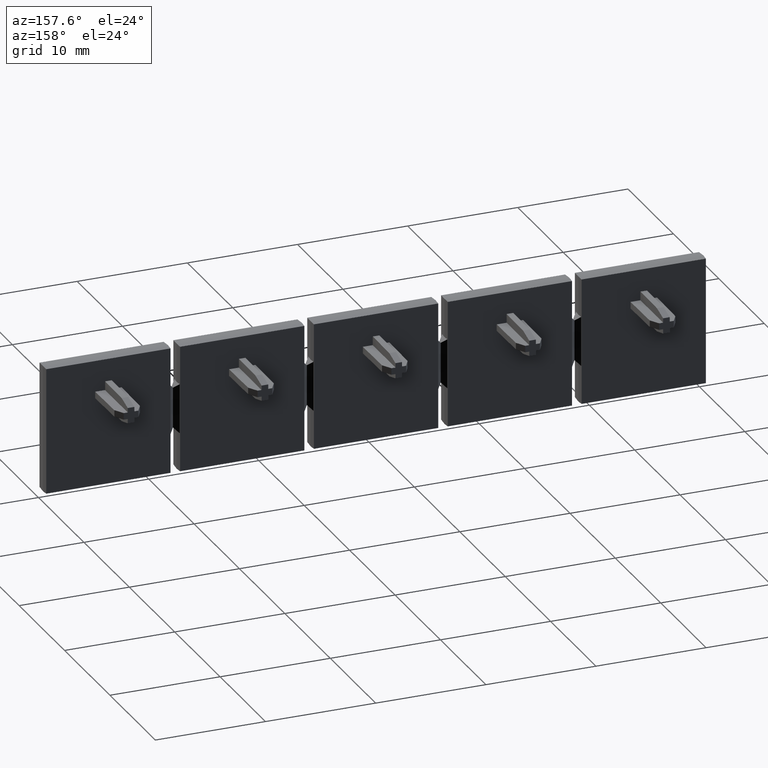
[diagram: clean part render]
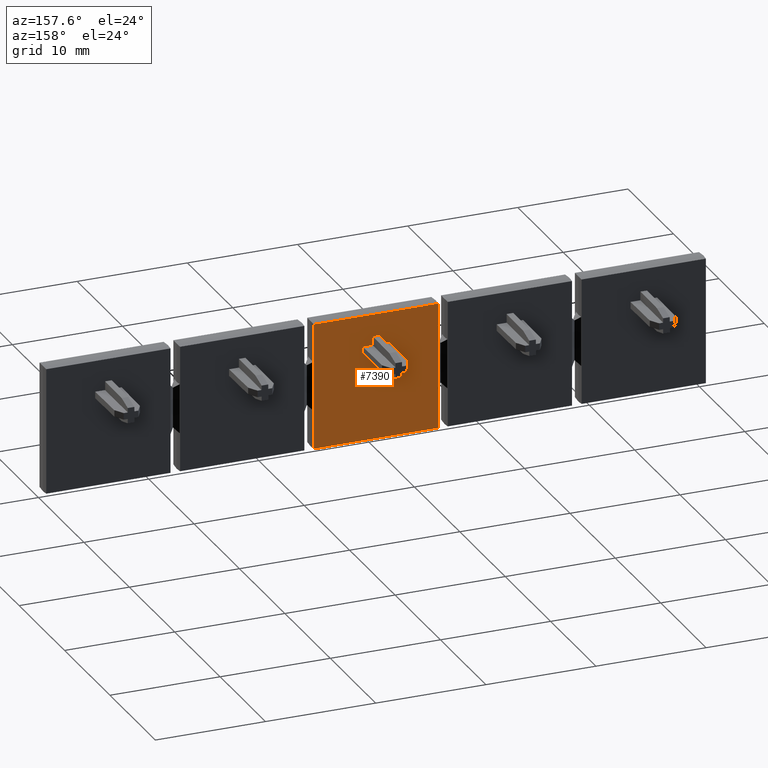
[diagram: same view with one face highlighted and labeled with its STEP entity id]
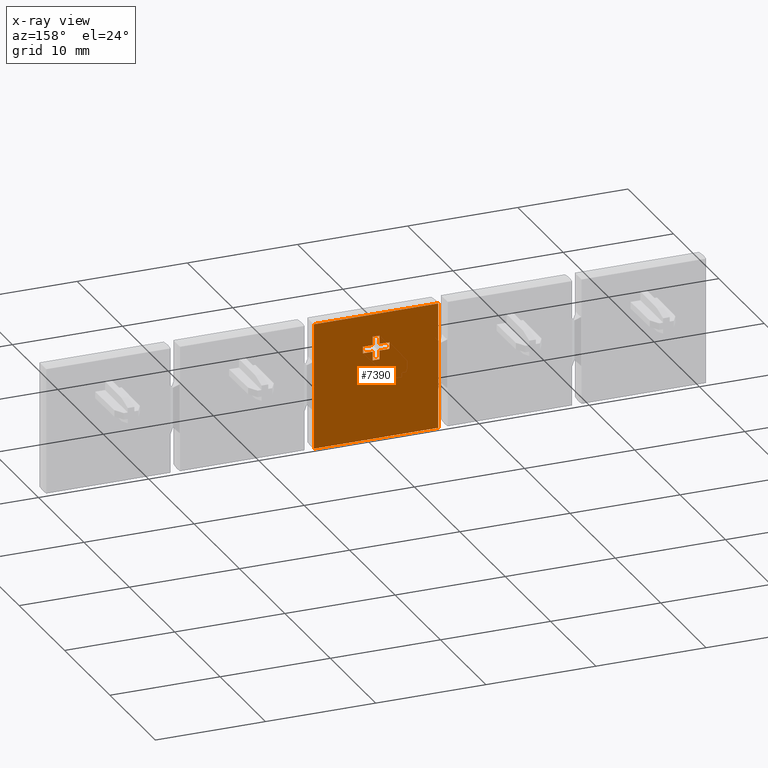
[diagram: x-ray of the same camera — body ghosted, the highlighted face saturated]
A machine part, auxiliary view. The second image highlights one B-rep face of the part: STEP entity #7390.
The next image is the same camera in x-ray: the body ghosted, the highlighted face saturated — about 0% of this face is hidden behind the body in this view.
In plain terms, the highlighted planar face has unit normal (0, 1, -0).
Its self-contained STEP definition (entity closure, byte-faithful):
#6020=CARTESIAN_POINT('',(19.5177358456501,2.91950785562727,
34.4450000205383));
#6030=DIRECTION('',(-6.29799242973768E-15,-1.,4.0839600663891E-13));
#6040=DIRECTION('',(-1.,6.29799243060089E-15,2.11364818889553E-12));
#6050=AXIS2_PLACEMENT_3D('',#6020,#6030,#6040);
#6060=PLANE('',#6050);
#6070=CARTESIAN_POINT('',(16.5677358660793,2.91950785563514,
53.6700000000617));
#6080=DIRECTION('',(-2.6697591550794E-12,4.08396006638927E-13,1.));
#6090=VECTOR('',#6080,1.);
#6100=LINE('',#6070,#6090);
#6110=CARTESIAN_POINT('',(16.5677358661505,2.91950785562426,
27.019999999986));
#6120=VERTEX_POINT('',#6110);
#6130=CARTESIAN_POINT('',(16.5677358661481,2.91950785562463,
27.9199999999575));
#6140=VERTEX_POINT('',#6130);
#6150=EDGE_CURVE('',#6120,#6140,#6100,.T.);
#6160=ORIENTED_EDGE('',*,*,#6150,.F.);
#6170=CARTESIAN_POINT('',(25.1869785549173,2.91950785562458,
27.9199999999806));
#6180=DIRECTION('',(1.,-6.29799242864677E-15,2.67120862381053E-12));
#6190=VECTOR('',#6180,1.);
#6200=LINE('',#6170,#6190);
#6210=CARTESIAN_POINT('',(15.9677358661481,2.91950785551302,
27.919999999955));
#6220=VERTEX_POINT('',#6210);
#6230=EDGE_CURVE('',#6220,#6140,#6200,.T.);
#6240=ORIENTED_EDGE('',*,*,#6230,.T.);
#6250=CARTESIAN_POINT('',(15.9677358660793,2.91950785563515,
53.6700000000601));
#6260=DIRECTION('',(2.6697591550794E-12,-4.08396006638927E-13,-1.));
#6270=VECTOR('',#6260,1.);
#6280=LINE('',#6250,#6270);
#6290=CARTESIAN_POINT('',(15.9677358661505,2.91950785562426,
27.0199999999843));
#6300=VERTEX_POINT('',#6290);
#6310=EDGE_CURVE('',#6220,#6300,#6280,.T.);
#6320=ORIENTED_EDGE('',*,*,#6310,.F.);
#6330=CARTESIAN_POINT('',(25.1869785549197,2.9195078556242,
27.020000000009));
#6340=DIRECTION('',(-1.,6.29799242864736E-15,-2.66975915507941E-12));
#6350=VECTOR('',#6340,1.);
#6360=LINE('',#6330,#6350);
#6370=CARTESIAN_POINT('',(15.1677358661384,2.91950785562426,
27.0199999999822));
#6380=VERTEX_POINT('',#6370);
#6390=EDGE_CURVE('',#6300,#6380,#6360,.T.);
#6400=ORIENTED_EDGE('',*,*,#6390,.F.);
#6410=CARTESIAN_POINT('',(15.1677358660672,2.91950785563515,
53.670000000058));
#6420=DIRECTION('',(-2.66988162442258E-12,4.08396006638927E-13,1.));
#6430=VECTOR('',#6420,1.);
#6440=LINE('',#6410,#6430);
#6450=CARTESIAN_POINT('',(15.16773586614,2.91950785562402,
26.4199999999822));
#6460=VERTEX_POINT('',#6450);
#6470=EDGE_CURVE('',#6460,#6380,#6440,.T.);
#6480=ORIENTED_EDGE('',*,*,#6470,.T.);
#6490=CARTESIAN_POINT('',(25.1869785549213,2.91950785562396,
26.420000000009));
#6500=DIRECTION('',(1.,-6.29799242864736E-15,2.66975915507941E-12));
#6510=VECTOR('',#6500,1.);
#6520=LINE('',#6490,#6510);
#6530=CARTESIAN_POINT('',(15.9677358661521,2.91950785562402,
26.4199999999843));
#6540=VERTEX_POINT('',#6530);
#6550=EDGE_CURVE('',#6460,#6540,#6520,.T.);
#6560=ORIENTED_EDGE('',*,*,#6550,.F.);
#6570=CARTESIAN_POINT('',(15.9677358660793,2.91950785563515,
53.6700000000601));
#6580=DIRECTION('',(2.6697591550794E-12,-4.08396006638927E-13,-1.));
#6590=VECTOR('',#6580,1.);
#6600=LINE('',#6570,#6590);
#6610=CARTESIAN_POINT('',(15.9677358661545,2.91950785562365,
25.5200000000137));
#6620=VERTEX_POINT('',#6610);
#6630=EDGE_CURVE('',#6540,#6620,#6600,.T.);
#6640=ORIENTED_EDGE('',*,*,#6630,.F.);
#6650=CARTESIAN_POINT('',(25.1869785549237,2.91950785562359,
25.5200000000374));
#6660=DIRECTION('',(-1.,6.29799242864795E-15,-2.66830968634828E-12));
#6670=VECTOR('',#6660,1.);
#6680=LINE('',#6650,#6670);
#6690=CARTESIAN_POINT('',(16.5677358661545,2.91950785562365,
25.5200000000144));
#6700=VERTEX_POINT('',#6690);
#6710=EDGE_CURVE('',#6700,#6620,#6680,.T.);
#6720=ORIENTED_EDGE('',*,*,#6710,.T.);
#6730=CARTESIAN_POINT('',(16.5677358660793,2.91950785563514,
53.6700000000617));
#6740=DIRECTION('',(-2.6697591550794E-12,4.08396006638927E-13,1.));
#6750=VECTOR('',#6740,1.);
#6760=LINE('',#6730,#6750);
#6770=CARTESIAN_POINT('',(16.5677358661521,2.91950785562402,
26.419999999986));
#6780=VERTEX_POINT('',#6770);
#6790=EDGE_CURVE('',#6700,#6780,#6760,.T.);
#6800=ORIENTED_EDGE('',*,*,#6790,.F.);
#6810=CARTESIAN_POINT('',(25.1869785549213,2.91950785562396,
26.420000000009));
#6820=DIRECTION('',(1.,-6.29799242864736E-15,2.66975915507941E-12));
#6830=VECTOR('',#6820,1.);
#6840=LINE('',#6810,#6830);
#6850=CARTESIAN_POINT('',(17.3677358661631,2.91950785562401,
26.4199999999881));
#6860=VERTEX_POINT('',#6850);
#6870=EDGE_CURVE('',#6780,#6860,#6840,.T.);
#6880=ORIENTED_EDGE('',*,*,#6870,.F.);
#6890=CARTESIAN_POINT('',(17.3677358660913,2.91950785563514,
53.6700000000639));
#6900=DIRECTION('',(2.66963668573623E-12,-4.08396006638927E-13,-1.));
#6910=VECTOR('',#6900,1.);
#6920=LINE('',#6890,#6910);
#6930=CARTESIAN_POINT('',(17.3677358661615,2.91950785562425,
27.0199999999881));
#6940=VERTEX_POINT('',#6930);
#6950=EDGE_CURVE('',#6940,#6860,#6920,.T.);
#6960=ORIENTED_EDGE('',*,*,#6950,.T.);
#6970=CARTESIAN_POINT('',(25.1869785549197,2.9195078556242,
27.020000000009));
#6980=DIRECTION('',(-1.,6.29799242864736E-15,-2.66975915507941E-12));
#6990=VECTOR('',#6980,1.);
#7000=LINE('',#6970,#6990);
#7010=EDGE_CURVE('',#6940,#6120,#7000,.T.);
#7020=ORIENTED_EDGE('',*,*,#7010,.F.);
#7030=EDGE_LOOP('',(#7020,#6960,#6880,#6800,#6720,#6640,#6560,#6480,
#6400,#6320,#6240,#6160));
#7040=FACE_BOUND('',#7030,.T.);
#7050=CARTESIAN_POINT('',(24.5843610345449,2.91950785563509,
53.6700000000831));
#7060=DIRECTION('',(2.1134619990612E-12,4.08396006638896E-13,1.));
#7070=VECTOR('',#7060,1.);
#7080=LINE('',#7050,#7070);
#7090=CARTESIAN_POINT('',(24.584361034476,2.91950785562178,
21.0783747906504));
#7100=VERTEX_POINT('',#7090);
#7110=CARTESIAN_POINT('',(24.5843610344998,2.91950785562639,
32.3616252093519));
#7120=VERTEX_POINT('',#7110);
#7130=EDGE_CURVE('',#7100,#7120,#7080,.T.);
#7140=ORIENTED_EDGE('',*,*,#7130,.T.);
#7150=CARTESIAN_POINT('',(25.1869785549356,2.91950785562178,
21.0783747906491));
#7160=DIRECTION('',(1.,-6.29799243060085E-15,-2.11350431493264E-12));
#7170=VECTOR('',#7160,1.);
#7180=LINE('',#7150,#7170);
#7190=CARTESIAN_POINT('',(13.1511106772466,2.91950785562185,
21.0783747906746));
#7200=VERTEX_POINT('',#7190);
#7210=EDGE_CURVE('',#7200,#7100,#7180,.T.);
#7220=ORIENTED_EDGE('',*,*,#7210,.T.);
#7230=CARTESIAN_POINT('',(13.1511106773155,2.91950785563516,
53.6700000000526));
#7240=DIRECTION('',(-2.1134619990612E-12,-4.08396006638896E-13,-1.));
#7250=VECTOR('',#7240,1.);
#7260=LINE('',#7230,#7250);
#7270=CARTESIAN_POINT('',(13.1511106772705,2.91950785562646,
32.361625209376));
#7280=VERTEX_POINT('',#7270);
#7290=EDGE_CURVE('',#7280,#7200,#7260,.T.);
#7300=ORIENTED_EDGE('',*,*,#7290,.T.);
#7310=CARTESIAN_POINT('',(25.1869785549055,2.91950785562639,
32.3616252093506));
#7320=DIRECTION('',(-1.,6.29799243060081E-15,2.11341968318976E-12));
#7330=VECTOR('',#7320,1.);
#7340=LINE('',#7310,#7330);
#7350=EDGE_CURVE('',#7120,#7280,#7340,.T.);
#7360=ORIENTED_EDGE('',*,*,#7350,.T.);
#7370=EDGE_LOOP('',(#7360,#7300,#7220,#7140));
#7380=FACE_OUTER_BOUND('',#7370,.T.);
#7390=ADVANCED_FACE('',(#7040,#7380),#6060,.T.);